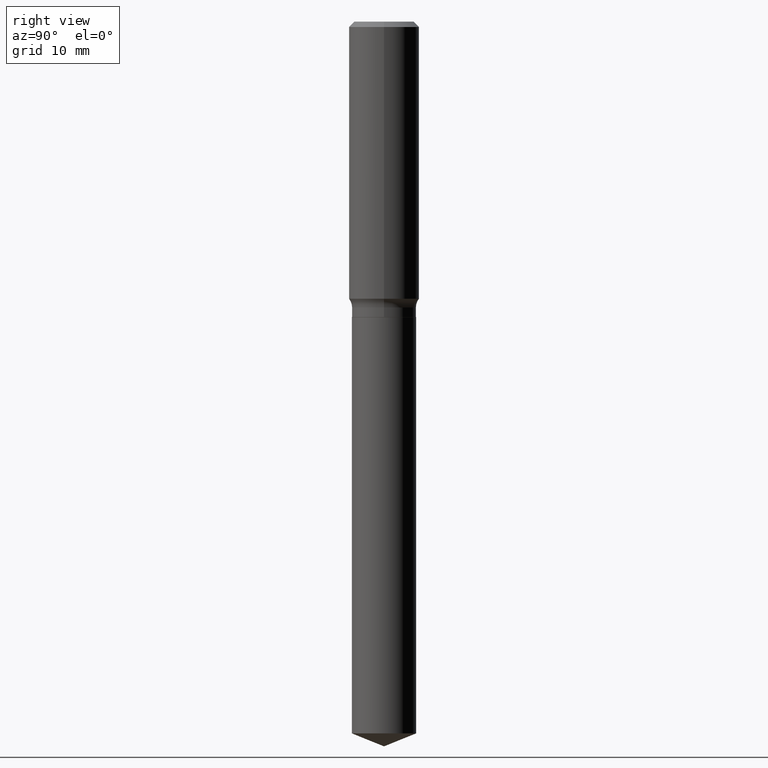
[diagram: clean part render]
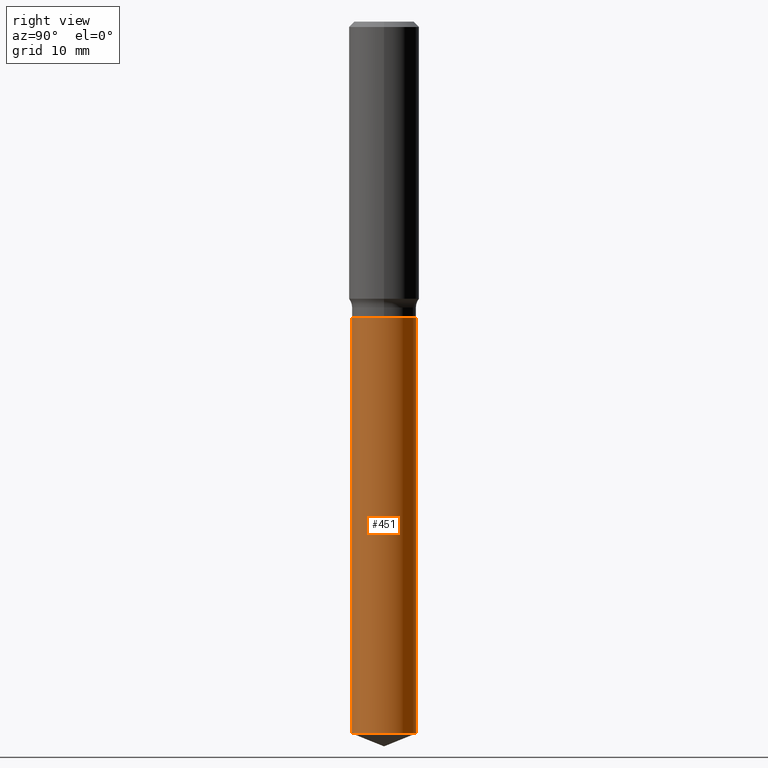
[diagram: same view with one face highlighted and labeled with its STEP entity id]
A machine part, right view. The second image highlights one B-rep face of the part: STEP entity #451.
In plain terms, the highlighted cylindrical surface (edge-blend (fillet) strip) has radius 4.5644 mm, axis along (-0, 0, 1).
Its self-contained STEP definition (entity closure, byte-faithful):
#2 = EDGE_CURVE ( 'NONE', #378, #148, #270, .T. ) ;
#4 = EDGE_LOOP ( 'NONE', ( #174, #30, #416, #418 ) ) ;
#8 = AXIS2_PLACEMENT_3D ( 'NONE', #356, #61, #22 ) ;
#12 = EDGE_CURVE ( 'NONE', #119, #148, #323, .T. ) ;
#22 = DIRECTION ( 'NONE',  ( -6.982962677686265922E-15, -1.000000000000000000, 3.040454083098790380E-15 ) ) ;
#30 = ORIENTED_EDGE ( 'NONE', *, *, #12, .T. ) ;
#50 = CARTESIAN_POINT ( 'NONE',  ( -1.254838393180181498E-15, -0.1797000000000057718, -1.653399999999999093 ) ) ;
#61 = DIRECTION ( 'NONE',  ( -2.445395198468639385E-29, 3.491586749282660968E-15, 1.000000000000000000 ) ) ;
#93 = DIRECTION ( 'NONE',  ( -6.982962677686265922E-15, -1.000000000000000000, 3.040454083098790380E-15 ) ) ;
#119 = VERTEX_POINT ( 'NONE', #479 ) ;
#127 = CARTESIAN_POINT ( 'NONE',  ( -1.254838393180181498E-15, -0.1797000000000057718, -1.653399999999999093 ) ) ;
#129 = CIRCLE ( 'NONE', #211, 0.1796999999999999986 ) ;
#148 = VERTEX_POINT ( 'NONE', #368 ) ;
#159 = CARTESIAN_POINT ( 'NONE',  ( -1.254838393180124503E-15, -0.1797000000000138487, -3.982396487217422010 ) ) ;
#165 = FACE_OUTER_BOUND ( 'NONE', #4, .T. ) ;
#166 = LINE ( 'NONE', #50, #317 ) ;
#174 = ORIENTED_EDGE ( 'NONE', *, *, #405, .T. ) ;
#211 = AXIS2_PLACEMENT_3D ( 'NONE', #388, #352, #93 ) ;
#242 = DIRECTION ( 'NONE',  ( -2.445395198468639105E-29, 3.491586749282660968E-15, 1.000000000000000000 ) ) ;
#245 = CARTESIAN_POINT ( 'NONE',  ( 1.276845296160940256E-15, 0.1796999999999942255, -1.653400000000000203 ) ) ;
#249 = CYLINDRICAL_SURFACE ( 'NONE', #422, 0.1796999999999999986 ) ;
#270 = CIRCLE ( 'NONE', #8, 0.1796999999999999986 ) ;
#317 = VECTOR ( 'NONE', #242, 39.37007874015748143 ) ;
#323 = LINE ( 'NONE', #245, #380 ) ;
#352 = DIRECTION ( 'NONE',  ( -2.445395198468639385E-29, 3.491586749282660968E-15, 1.000000000000000000 ) ) ;
#355 = DIRECTION ( 'NONE',  ( -6.982962677686265922E-15, -1.000000000000000000, 3.040454083098790380E-15 ) ) ;
#356 = CARTESIAN_POINT ( 'NONE',  ( 4.043338124146503856E-29, -5.772815245643255193E-15, -1.653399999999999537 ) ) ;
#361 = EDGE_CURVE ( 'NONE', #464, #378, #166, .T. ) ;
#368 = CARTESIAN_POINT ( 'NONE',  ( 1.276845296160997646E-15, 0.1796999999999942255, -1.653400000000000203 ) ) ;
#378 = VERTEX_POINT ( 'NONE', #127 ) ;
#380 = VECTOR ( 'NONE', #394, 39.37007874015748143 ) ;
#388 = CARTESIAN_POINT ( 'NONE',  ( 9.738654951238319122E-29, -1.390470851953747405E-14, -3.982396487217422898 ) ) ;
#394 = DIRECTION ( 'NONE',  ( -2.445395198468639105E-29, 3.491586749282660968E-15, 1.000000000000000000 ) ) ;
#405 = EDGE_CURVE ( 'NONE', #464, #119, #129, .T. ) ;
#416 = ORIENTED_EDGE ( 'NONE', *, *, #2, .F. ) ;
#418 = ORIENTED_EDGE ( 'NONE', *, *, #361, .F. ) ;
#422 = AXIS2_PLACEMENT_3D ( 'NONE', #434, #433, #355 ) ;
#433 = DIRECTION ( 'NONE',  ( -2.445395198468639385E-29, 3.491586749282660968E-15, 1.000000000000000000 ) ) ;
#434 = CARTESIAN_POINT ( 'NONE',  ( 4.043338124146503856E-29, -5.772815245643255193E-15, -1.653399999999999537 ) ) ;
#451 = ADVANCED_FACE ( 'NONE', ( #165 ), #249, .T. ) ;
#464 = VERTEX_POINT ( 'NONE', #159 ) ;
#479 = CARTESIAN_POINT ( 'NONE',  ( 1.276845296160996857E-15, 0.1796999999999860931, -3.982396487217423342 ) ) ;